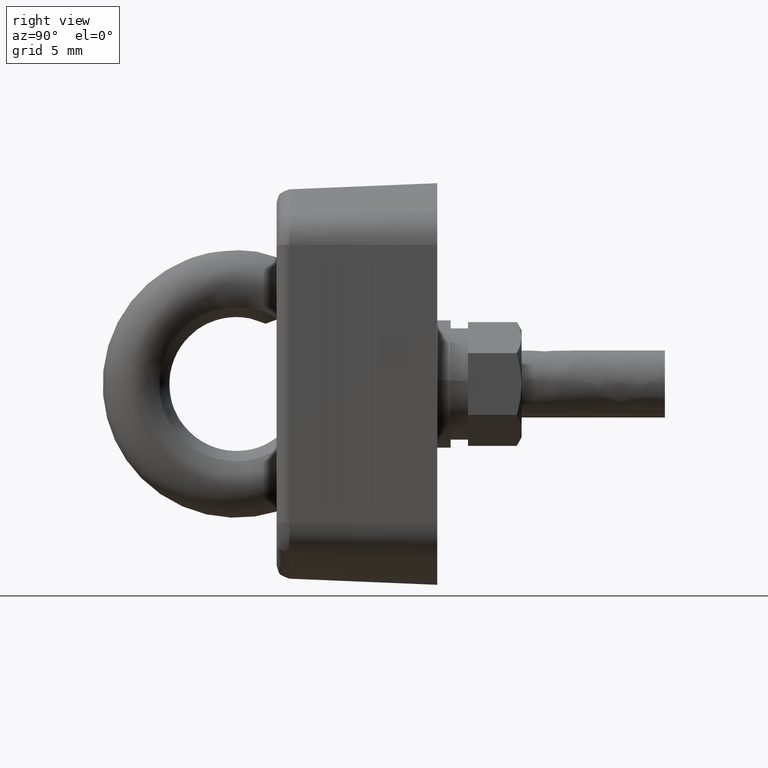
[diagram: clean part render]
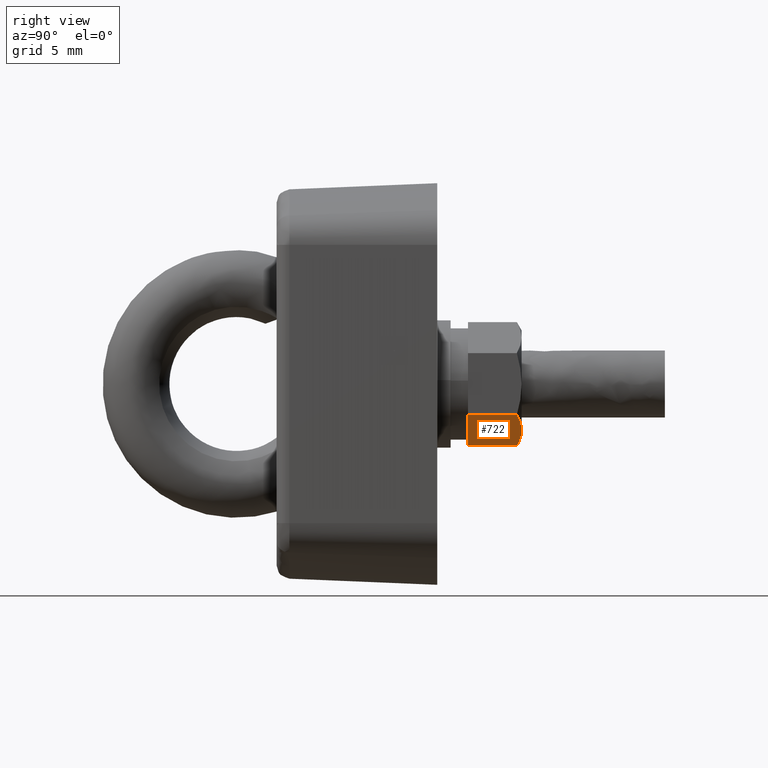
[diagram: same view with one face highlighted and labeled with its STEP entity id]
A machine part, right view. The second image highlights one B-rep face of the part: STEP entity #722.
In plain terms, the highlighted face is a freeform B-spline surface patch.
Its self-contained STEP definition (entity closure, byte-faithful):
#476=CARTESIAN_POINT('',(4.618807690595940,0.000014339748281,-20.942734213244901));
#477=VERTEX_POINT('',#476);
#504=CARTESIAN_POINT('',(2.309416309399660,4.0,-20.942733012796150));
#505=VERTEX_POINT('',#504);
#521=CARTESIAN_POINT('',(2.309416309399660,4.0,-20.942733012796150));
#522=CARTESIAN_POINT('',(2.497956036607044,3.673439412930238,-21.051586036712031));
#523=CARTESIAN_POINT('',(2.687870491062873,3.344497726959131,-21.141300703768898));
#524=CARTESIAN_POINT('',(3.071660540449645,2.679753454249853,-21.265584757197232));
#525=CARTESIAN_POINT('',(3.265565582773373,2.343899863099946,-21.299744189730699));
#526=CARTESIAN_POINT('',(3.510991558312956,1.918809343231853,-21.300056867728070));
#527=CARTESIAN_POINT('',(3.560325486154227,1.833360421262310,-21.298016938949370));
#528=CARTESIAN_POINT('',(3.658545423754693,1.663238394674865,-21.289797782860401));
#529=CARTESIAN_POINT('',(3.707484767168125,1.578472913401416,-21.283628047818681));
#530=CARTESIAN_POINT('',(3.853813074025909,1.325024695881501,-21.259205847727848));
#531=CARTESIAN_POINT('',(3.950711169153410,1.157192169021142,-21.235026563600790));
#532=CARTESIAN_POINT('',(4.239680322123173,0.656682607261454,-21.141659198813262));
#533=CARTESIAN_POINT('',(4.430032969155527,0.326981949018781,-21.051722763406211));
#534=CARTESIAN_POINT('',(4.618807690595940,0.000014339748281,-20.942734213244901));
#535=B_SPLINE_CURVE_WITH_KNOTS('',3,(#521,#522,#523,#524,#525,#526,#527,#528,#529,#530,#531,#532,#533,#534),.UNSPECIFIED.,.F.,.U.,(4,2,2,2,2,2,4),(0.0,0.250000000000000,0.500000000000000,0.562500000000000,0.625000000000000,0.750000000000000,1.0),.UNSPECIFIED.);
#536=EDGE_CURVE('',#505,#477,#535,.T.);
#546=CARTESIAN_POINT('',(2.309416309399660,4.0,-17.300002999999901));
#547=VERTEX_POINT('',#546);
#548=CARTESIAN_POINT('',(4.618807690595940,0.000014339748281,-17.300002999999901));
#549=VERTEX_POINT('',#548);
#550=CARTESIAN_POINT('',(2.309416309399660,4.0,-17.300002999999901));
#551=CARTESIAN_POINT('',(4.618807690595940,0.000014339748281,-17.300002999999901));
#552=QUASI_UNIFORM_CURVE('',1,(#550,#551),.UNSPECIFIED.,.F.,.U.);
#553=EDGE_CURVE('',#547,#549,#552,.T.);
#633=CARTESIAN_POINT('',(2.309416309399660,4.0,-20.942733012796150));
#634=CARTESIAN_POINT('',(2.309416309399660,4.0,-17.300002999999901));
#635=QUASI_UNIFORM_CURVE('',1,(#633,#634),.UNSPECIFIED.,.F.,.U.);
#636=EDGE_CURVE('',#505,#547,#635,.T.);
#700=CARTESIAN_POINT('',(4.618807690595940,0.000014339748281,-20.942734213244901));
#701=CARTESIAN_POINT('',(4.618807690595940,0.000014339748281,-17.300002999999901));
#702=QUASI_UNIFORM_CURVE('',1,(#700,#701),.UNSPECIFIED.,.F.,.U.);
#703=EDGE_CURVE('',#477,#549,#702,.T.);
#711=CARTESIAN_POINT('',(2.194062192706041,4.199799313525829,-21.499795041478869));
#712=CARTESIAN_POINT('',(4.734161848584692,-0.199785045302868,-21.499795041478869));
#713=CARTESIAN_POINT('',(2.194062192706041,4.199799313525829,-17.100203578424608));
#714=CARTESIAN_POINT('',(4.734161848584692,-0.199785045302868,-17.100203578424608));
#715=B_SPLINE_SURFACE_WITH_KNOTS('',1,1,((#711,#713),(#712,#714)),.UNSPECIFIED.,.F.,.F.,.U.,(2,2),(2,2),(0.0,5.080201648777827),(0.0,4.399591463054261),.UNSPECIFIED.);
#716=ORIENTED_EDGE('',*,*,#536,.F.);
#717=ORIENTED_EDGE('',*,*,#636,.T.);
#718=ORIENTED_EDGE('',*,*,#553,.T.);
#719=ORIENTED_EDGE('',*,*,#703,.F.);
#720=EDGE_LOOP('',(#716,#717,#718,#719));
#721=FACE_OUTER_BOUND('',#720,.T.);
#722=ADVANCED_FACE('',(#721),#715,.F.);